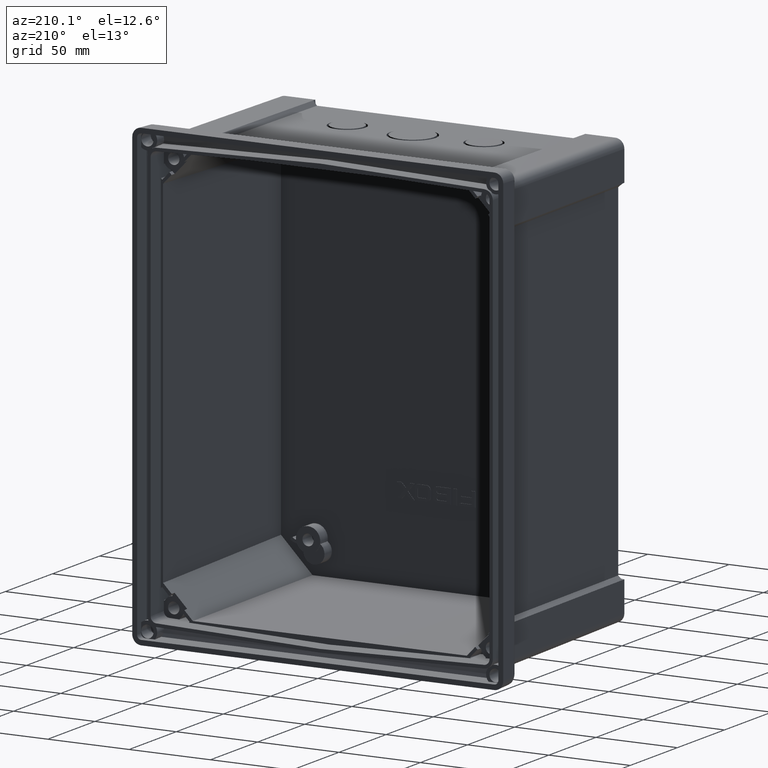
[diagram: clean part render]
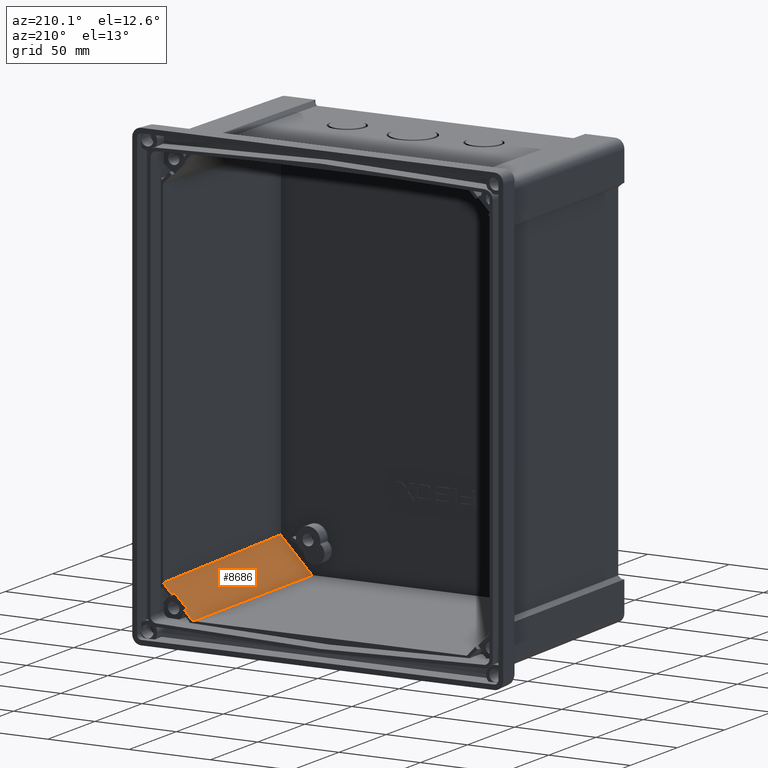
[diagram: same view with one face highlighted and labeled with its STEP entity id]
A machine part, auxiliary view. The second image highlights one B-rep face of the part: STEP entity #8686.
In plain terms, the highlighted planar face has unit normal (0.7149, -0.0262, -0.6988).
Its self-contained STEP definition (entity closure, byte-faithful):
#1059=DIRECTION('',(6.990176386298E-1,-1.412236652286E-13,7.151044265591E-1));
#1060=VECTOR('',#1059,7.484102028740E0);
#1061=CARTESIAN_POINT('',(8.418168310578E1,-1.279291351800E1,
-1.274622056260E2));
#1062=LINE('',#1061,#1060);
#1423=DIRECTION('',(6.990176390513E-1,-8.016705822006E-14,7.151044261471E-1));
#1424=VECTOR('',#1423,1.099046181692E1);
#1425=CARTESIAN_POINT('',(8.943088554722E1,-1.579291350588E1,
-1.219798179722E2));
#1426=LINE('',#1425,#1424);
#1695=DIRECTION('',(6.990176380126E-1,1.098462997575E-13,7.151044271624E-1));
#1696=VECTOR('',#1695,7.503480547829E0);
#1697=CARTESIAN_POINT('',(9.724219998721E1,-1.279291351800E1,
-1.141011215640E2));
#1698=LINE('',#1697,#1696);
#1755=DIRECTION('',(-5.888702647683E-3,9.990382813995E-1,-4.344922875544E-2));
#1756=VECTOR('',#1755,3.002887921045E0);
#1757=CARTESIAN_POINT('',(8.943088554722E1,-1.579291350588E1,
-1.219798179722E2));
#1758=LINE('',#1757,#1756);
#1759=DIRECTION('',(-4.288886116545E-2,-9.990590282013E-1,-6.450097478118E-3));
#1760=VECTOR('',#1759,3.002825562050E0);
#1761=CARTESIAN_POINT('',(9.724219998721E1,-1.279291351800E1,
-1.141011215640E2));
#1762=LINE('',#1761,#1760);
#1763=DIRECTION('',(1.395843279903E-2,9.996341438740E-1,-2.316766183730E-2));
#1764=VECTOR('',#1763,1.217516300679E2);
#1765=CARTESIAN_POINT('',(1.007878032901E2,-1.345000000062E2,
-1.059146488115E2));
#1766=LINE('',#1765,#1764);
#1767=DIRECTION('',(-2.296060348863E-2,-9.996389203003E-1,1.395849949918E-2));
#1768=VECTOR('',#1767,1.217510483202E2);
#1769=CARTESIAN_POINT('',(8.418168310578E1,-1.279291351800E1,
-1.274622056260E2));
#1770=LINE('',#1769,#1768);
#1787=DIRECTION('',(6.990176389618E-1,-1.669123372866E-13,7.151044262345E-1));
#1788=VECTOR('',#1787,2.775551952879E1);
#1789=CARTESIAN_POINT('',(8.138620556097E1,-1.345000000062E2,
-1.257627436790E2));
#1790=LINE('',#1789,#1788);
#5903=CARTESIAN_POINT('',(9.724219998721E1,-1.279291351800E1,
-1.141011215640E2));
#5904=CARTESIAN_POINT('',(1.024872652366E2,-1.279291351800E1,
-1.087353494051E2));
#5905=VERTEX_POINT('',#5903);
#5906=VERTEX_POINT('',#5904);
#6383=CARTESIAN_POINT('',(8.941320243317E1,-1.279291351800E1,
-1.221102911365E2));
#6384=VERTEX_POINT('',#6383);
#6385=CARTESIAN_POINT('',(8.418168310578E1,-1.279291351800E1,
-1.274622056260E2));
#6386=VERTEX_POINT('',#6385);
#6387=CARTESIAN_POINT('',(8.943088554722E1,-1.579291350588E1,
-1.219798179722E2));
#6388=VERTEX_POINT('',#6387);
#6389=CARTESIAN_POINT('',(9.711341221857E1,-1.579291350588E1,
-1.141204900816E2));
#6390=VERTEX_POINT('',#6389);
#6391=CARTESIAN_POINT('',(1.007878032901E2,-1.345000000062E2,
-1.059146488115E2));
#6392=VERTEX_POINT('',#6391);
#6393=CARTESIAN_POINT('',(8.138620556097E1,-1.345000000062E2,
-1.257627436790E2));
#6394=VERTEX_POINT('',#6393);
#8667=CARTESIAN_POINT('',(9.222652770450E1,-7.364645675900E1,
-1.169525851368E2));
#8668=DIRECTION('',(7.148593776038E-1,-2.617694830599E-2,-6.987781032840E-1));
#8669=DIRECTION('',(6.990176391706E-1,0.E0,7.151044260305E-1));
#8670=AXIS2_PLACEMENT_3D('',#8667,#8668,#8669);
#8671=PLANE('',#8670);
#8673=ORIENTED_EDGE('',*,*,#8672,.F.);
#8674=ORIENTED_EDGE('',*,*,#8418,.T.);
#8676=ORIENTED_EDGE('',*,*,#8675,.F.);
#8677=ORIENTED_EDGE('',*,*,#8641,.T.);
#8679=ORIENTED_EDGE('',*,*,#8678,.F.);
#8681=ORIENTED_EDGE('',*,*,#8680,.F.);
#8682=ORIENTED_EDGE('',*,*,#7875,.F.);
#8683=ORIENTED_EDGE('',*,*,#7921,.T.);
#8684=EDGE_LOOP('',(#8673,#8674,#8676,#8677,#8679,#8681,#8682,#8683));
#8685=FACE_OUTER_BOUND('',#8684,.F.);
#8686=ADVANCED_FACE('',(#8685),#8671,.F.);
#7875=EDGE_CURVE('',#6386,#6394,#1770,.T.);
#7921=EDGE_CURVE('',#6386,#6384,#1062,.T.);
#8418=EDGE_CURVE('',#6388,#6390,#1426,.T.);
#8641=EDGE_CURVE('',#5905,#5906,#1698,.T.);
#8672=EDGE_CURVE('',#6388,#6384,#1758,.T.);
#8675=EDGE_CURVE('',#5905,#6390,#1762,.T.);
#8678=EDGE_CURVE('',#6392,#5906,#1766,.T.);
#8680=EDGE_CURVE('',#6394,#6392,#1790,.T.);